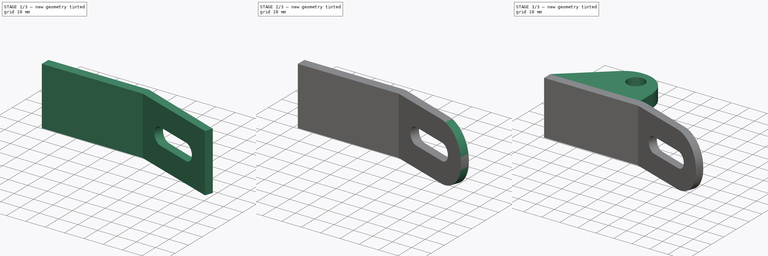
[diagram: build sequence overview — one tinted view per stage of 3, left to right]
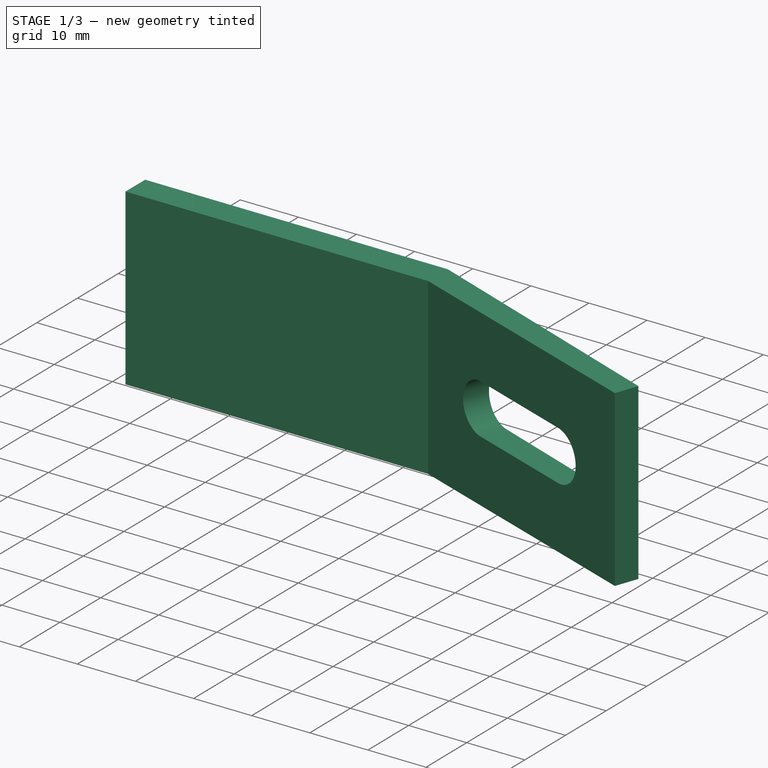
[diagram: stage 1 of 3 — iso view after this stage's code; geometry added in this stage tinted green]
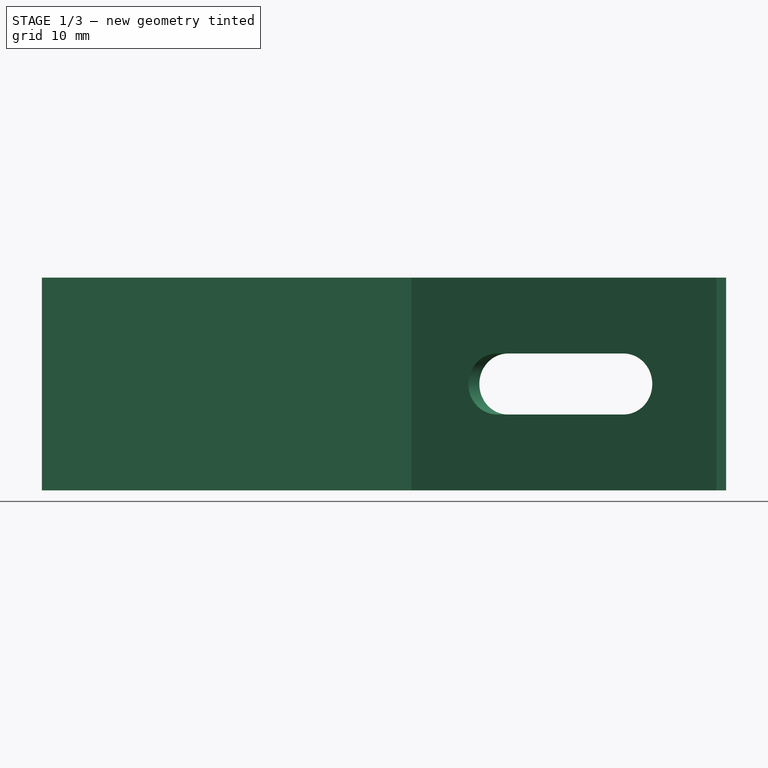
[diagram: stage 1 of 3 — front view after this stage's code; geometry added in this stage tinted green]
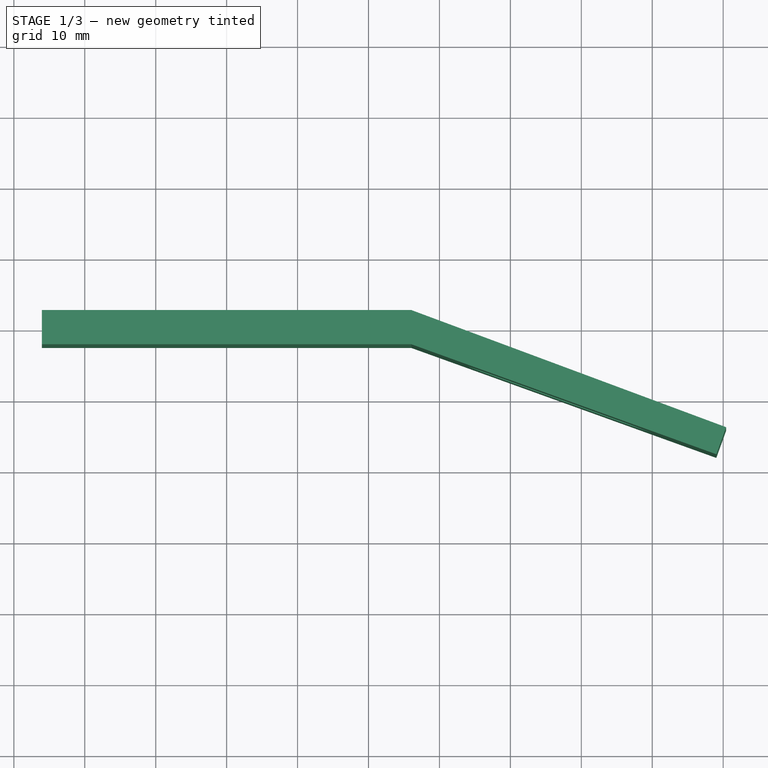
[diagram: stage 1 of 3 — top view after this stage's code; geometry added in this stage tinted green]
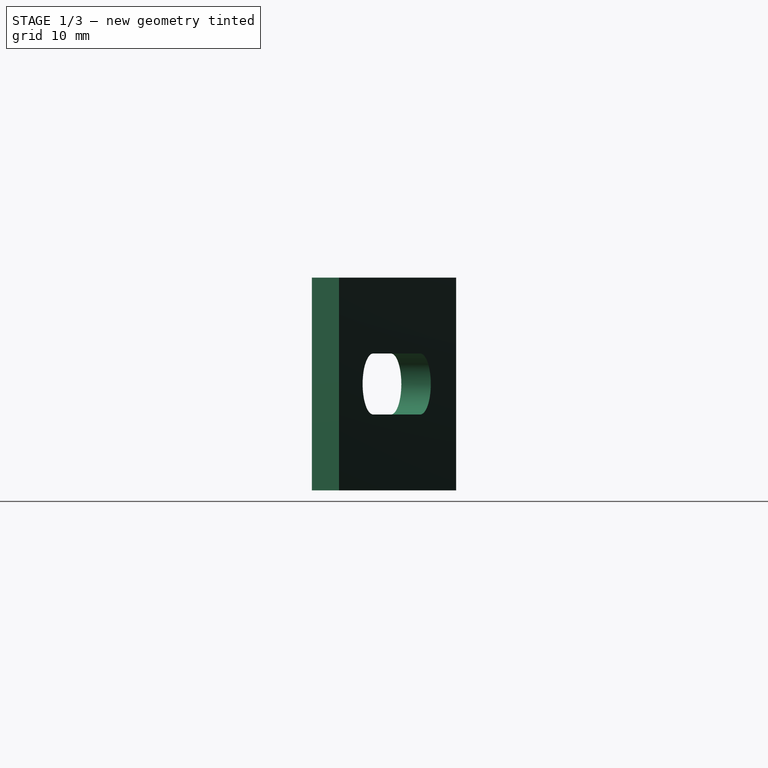
[diagram: stage 1 of 3 — right view after this stage's code; geometry added in this stage tinted green]
FCSTD DOCUMENT  (FreeCAD 0.21R33771 (Git))
Label: ex57
License: All rights reserved
LicenseURL: http://en.wikipedia.org/wiki/All_rights_reserved
objects: Sketcher::SketchObject×4, PartDesign::Fillet×3, PartDesign::Pad×2, PartDesign::Pocket×2, PartDesign::Body×1
note: 19 computed .brp shape members not serialized (recipe doc carries the construction recipe); baked Part::Feature solids carry a one-line shape summary decoded from their .brp

FEATURE [Sketcher::SketchObject] Sketch
  FullyConstrained = false
  MapMode = 5
  Support = -> [XY_Plane]
  sketch-geometry (7):
    g0: LineSegment StartX=-26.0424 StartY=-2.41265 StartZ=0 EndX=-26.0424 EndY=2.41265 EndZ=0
    g1: LineSegment StartX=-26.0424 StartY=2.41265 StartZ=0 EndX=26.0424 EndY=2.41265 EndZ=0
    g2: LineSegment StartX=26.0424 StartY=-2.41265 StartZ=0 EndX=-26.0424 EndY=-2.41265 EndZ=0
    g3: GeomPoint X=0 Y=0 Z=0
    g4: LineSegment StartX=26.0424 StartY=2.41265 StartZ=0 EndX=70.4084 EndY=-14.1011 EndZ=0
    g5: LineSegment StartX=26.0424 StartY=-2.41265 StartZ=0 EndX=69.0323 EndY=-17.9166 EndZ=0
    g6: LineSegment StartX=70.4084 StartY=-14.1011 StartZ=0 EndX=69.0323 EndY=-17.9166 EndZ=0
  constraints (11):
    c: Coincident(g0,g1)
    c: Coincident(g2,g0)
    c: Horizontal(g1)
    c: Horizontal(g2)
    c: Vertical(g0)
    c: Symmetric(g1,g0,g3)
    c: Coincident(g3,g-1)
    c: Coincident(g4,g1)
    c: Coincident(g6,g5)
    c: Coincident(g6,g4)
    c: Perpendicular(g5,g6)
FEATURE [PartDesign::Pad] Pad
  Direction = (0,0,1)
  Length = 30
  Length2 = 10
  Profile = -> Sketch
  ReferenceAxis = -> Sketch [N_Axis]
  Refine = true
  Type = 0
FEATURE [Sketcher::SketchObject] Sketch001
  FullyConstrained = false
  MapMode = 5
  Placement = pos=(3.95774,10.6329,0) rot=(0.126311,0.701443,0.701443;2.8903rad)
  Support = -> [Pad]
  sketch-geometry (4):
    g0: ArcOfCircle CenterX=-57.0511 CenterY=15 CenterZ=0 NormalX=0 NormalY=0 NormalZ=1 AngleXU=0 Radius=4.29729 StartAngle=1.5708 EndAngle=4.71239
    g1: ArcOfCircle CenterX=-38.0869 CenterY=15 CenterZ=0 NormalX=0 NormalY=0 NormalZ=1 AngleXU=0 Radius=4.29729 StartAngle=4.71239 EndAngle=7.85398
    g2: LineSegment StartX=-57.0511 StartY=10.7027 StartZ=0 EndX=-38.0869 EndY=10.7027 EndZ=0
    g3: LineSegment StartX=-38.0869 StartY=19.2973 StartZ=0 EndX=-57.0511 EndY=19.2973 EndZ=0
  constraints (7):
    c: Tangent(g0,g2) = -1.5708
    c: Tangent(g2,g1) = -1.5708
    c: Tangent(g1,g3) = -1.5708
    c: Tangent(g3,g0) = -1.5708
    c: Equal(g0,g1)
    c: Horizontal(g2)
    c: DistanceY(g-1,g0) = 15
FEATURE [PartDesign::Pocket] Pocket
  BaseFeature = -> Pad
  Direction = (-0.348835,-0.937184,2e-16)
  Length = 5
  Length2 = 5
  Profile = -> Sketch001
  ReferenceAxis = -> Sketch001 [N_Axis]
  Refine = true
  Type = 0
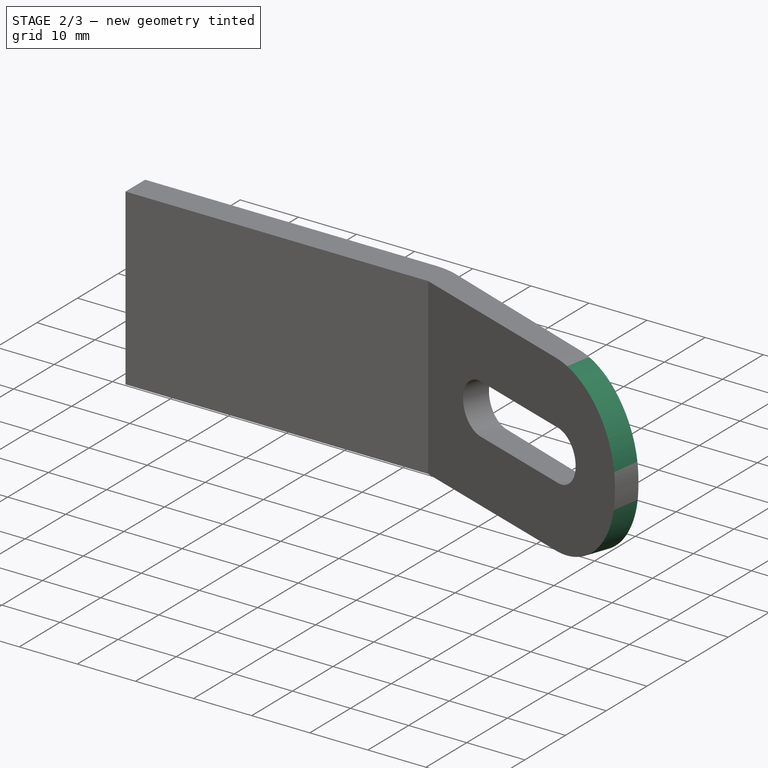
[diagram: stage 2 of 3 — iso view after this stage's code; geometry added in this stage tinted green]
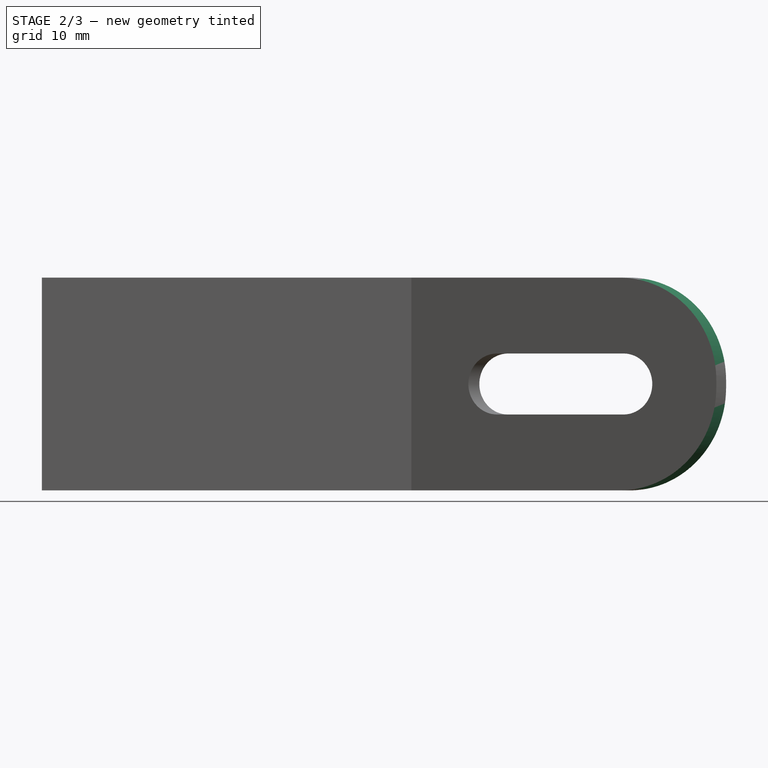
[diagram: stage 2 of 3 — front view after this stage's code; geometry added in this stage tinted green]
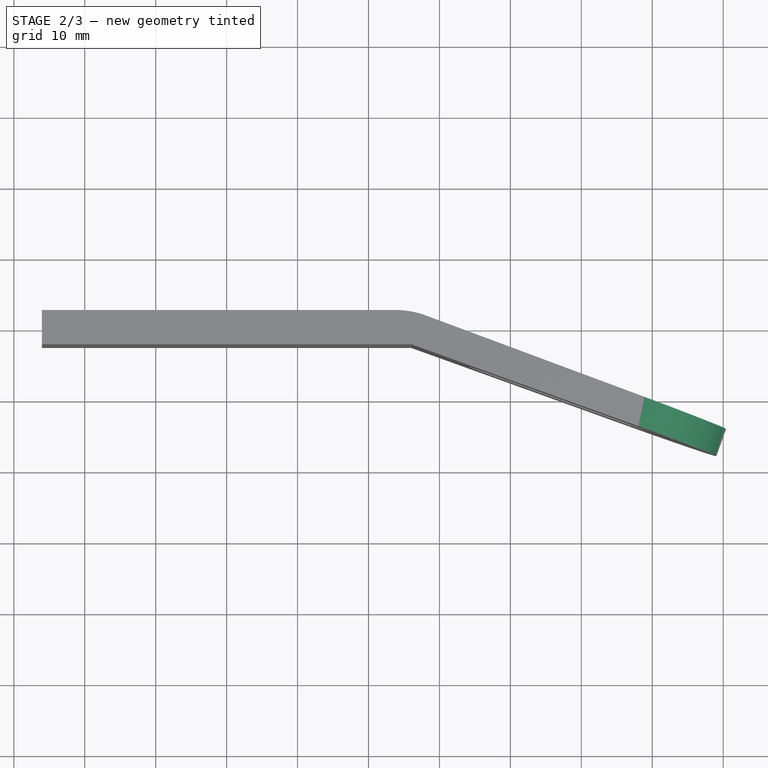
[diagram: stage 2 of 3 — top view after this stage's code; geometry added in this stage tinted green]
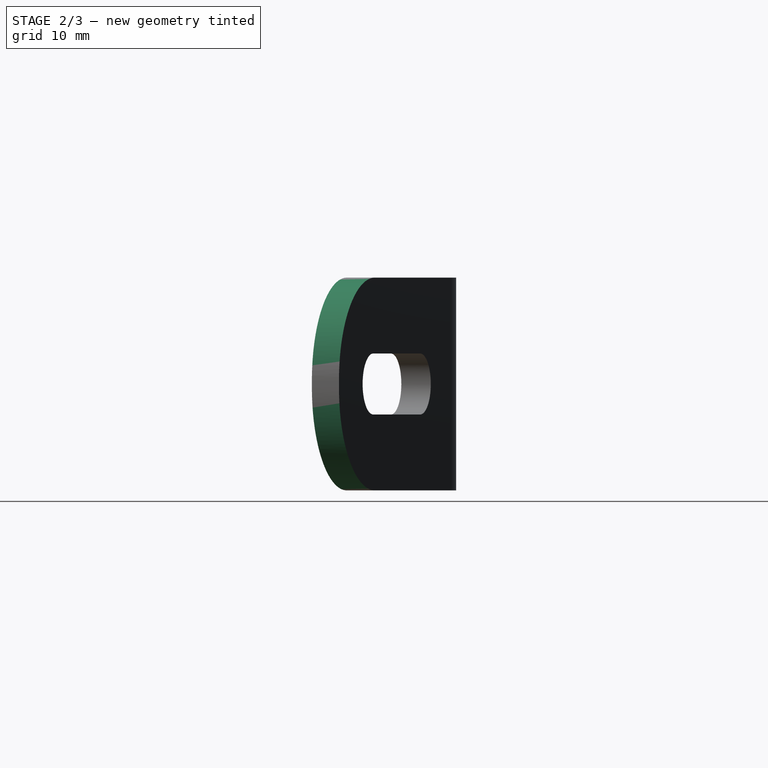
[diagram: stage 2 of 3 — right view after this stage's code; geometry added in this stage tinted green]
FEATURE [PartDesign::Fillet] Fillet
  Base = -> Pocket [Edge15]
  BaseFeature = -> Pocket
  Radius = 14.5
  Refine = true
  SupportTransform = false
  UseAllEdges = false
FEATURE [PartDesign::Fillet] Fillet001
  Base = -> Fillet [Edge29]
  BaseFeature = -> Fillet
  Radius = 14.5
  Refine = true
  SupportTransform = false
  UseAllEdges = false
FEATURE [PartDesign::Fillet] Fillet002
  Base = -> Fillet001 [Edge6]
  BaseFeature = -> Fillet001
  Radius = 12
  Refine = true
  SupportTransform = false
  UseAllEdges = false
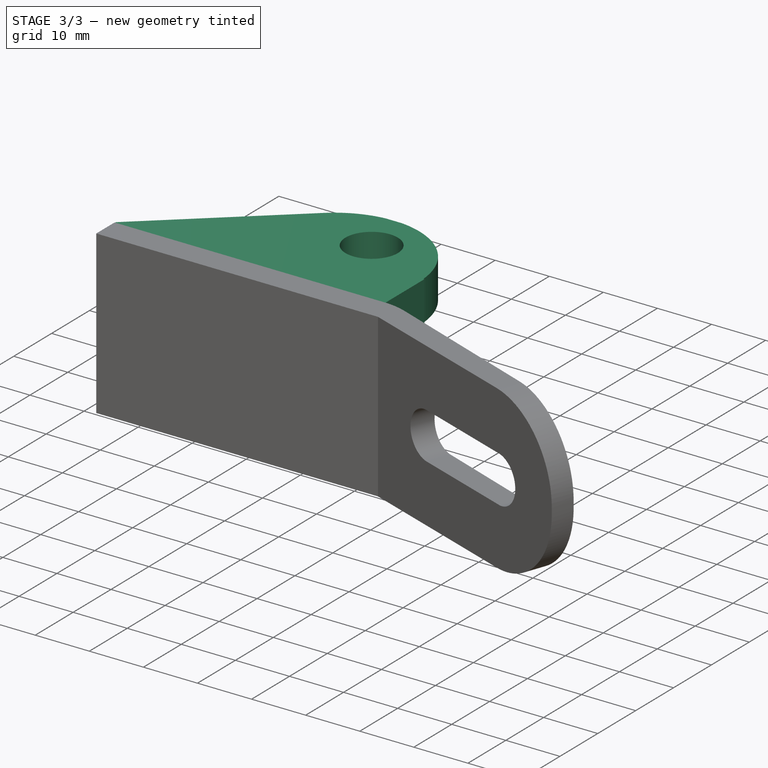
[diagram: stage 3 of 3 — iso view after this stage's code; geometry added in this stage tinted green]
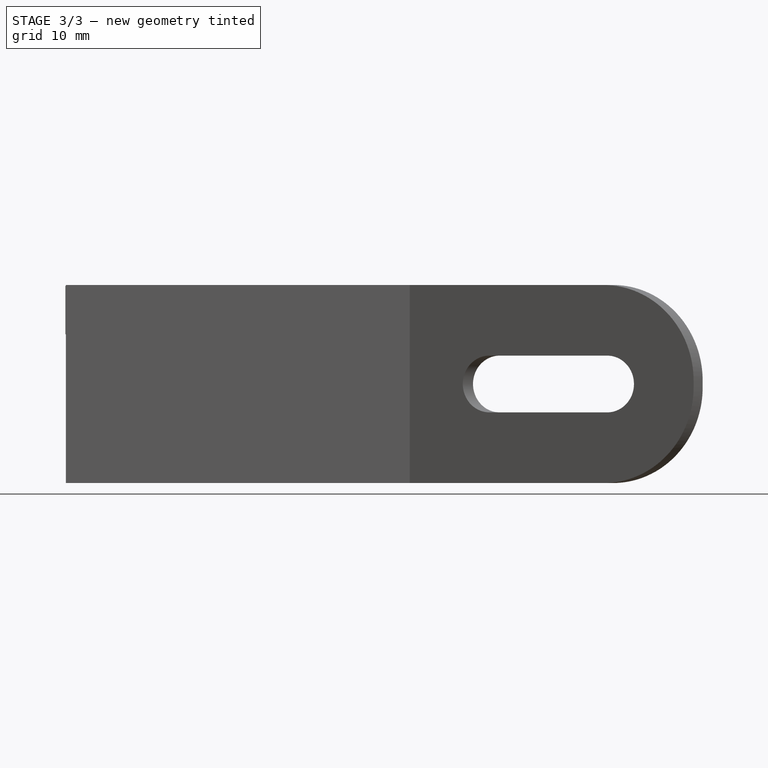
[diagram: stage 3 of 3 — front view after this stage's code; geometry added in this stage tinted green]
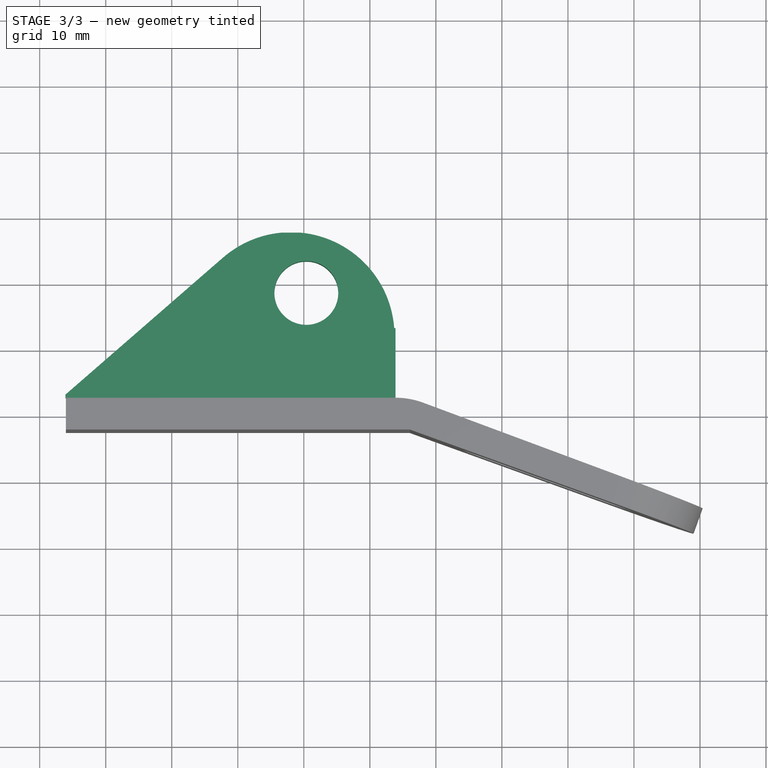
[diagram: stage 3 of 3 — top view after this stage's code; geometry added in this stage tinted green]
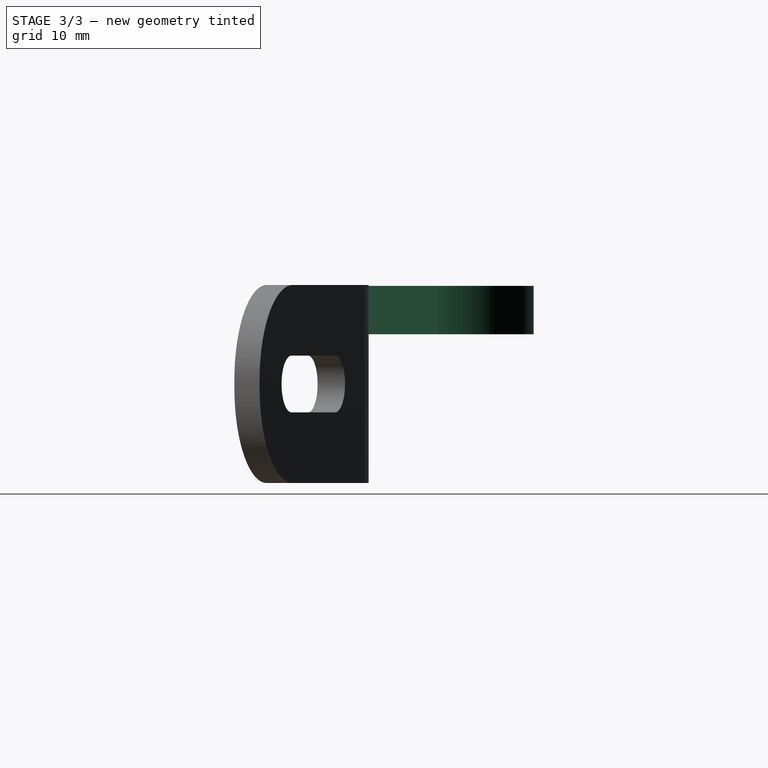
[diagram: stage 3 of 3 — right view after this stage's code; geometry added in this stage tinted green]
FEATURE [Sketcher::SketchObject] Sketch002
  FullyConstrained = false
  MapMode = 5
  Placement = pos=(0,2.41265,0) rot=(0,0.707107,0.707107;3.14159rad)
  Support = -> [Fillet002]
  sketch-geometry (5):
    g0: LineSegment StartX=-23.8834 StartY=22.5338 StartZ=0 EndX=-23.8834 EndY=29.8549 EndZ=0
    g1: LineSegment StartX=-23.8834 StartY=29.8549 StartZ=0 EndX=26.1189 EndY=29.8549 EndZ=0
    g2: LineSegment StartX=26.1189 StartY=29.8549 StartZ=0 EndX=26.1189 EndY=22.5338 EndZ=0
    g3: LineSegment StartX=26.1189 StartY=22.5338 StartZ=0 EndX=-23.8834 EndY=22.5338 EndZ=0
    g4: GeomPoint X=1.11775 Y=26.1943 Z=0
  constraints (9):
    c: Coincident(g0,g1)
    c: Coincident(g1,g2)
    c: Coincident(g2,g3)
    c: Coincident(g3,g0)
    c: Horizontal(g1)
    c: Horizontal(g3)
    c: Vertical(g0)
    c: Vertical(g2)
    c: Symmetric(g1,g0,g4)
FEATURE [PartDesign::Pad] Pad001
  BaseFeature = -> Fillet002
  Direction = (0,1,-2e-16)
  Length = 25
  Length2 = 10
  Profile = -> Sketch002
  ReferenceAxis = -> Sketch002 [N_Axis]
  Refine = true
  Type = 0
FEATURE [Sketcher::SketchObject] Sketch003
  FullyConstrained = false
  MapMode = 5
  Placement = pos=(0,6.6e-15,29.8549) rot=(0,0,1;0rad)
  Support = -> [Pad001]
  sketch-geometry (7):
    g0: LineSegment StartX=-30.0109 StartY=-0.513768 StartZ=0 EndX=-30.0109 EndY=32.2657 EndZ=0
    g1: ArcOfCircle CenterX=8.04998 CenterY=11.7998 CenterZ=0 NormalX=0 NormalY=0 NormalZ=1 AngleXU=0 Radius=15.6839 StartAngle=0.0743307 EndAngle=2.28657
    g2: LineSegment StartX=-2.2418 StartY=23.6347 StartZ=0 EndX=-30.0109 EndY=-0.513768 EndZ=0
    g3: LineSegment StartX=23.6906 StartY=12.9646 StartZ=0 EndX=32.1764 EndY=11.9662 EndZ=0
    g4: LineSegment StartX=32.1764 StartY=11.9662 StartZ=0 EndX=31.0117 EndY=32.2657 EndZ=0
    g5: LineSegment StartX=31.0117 StartY=32.2657 StartZ=0 EndX=-30.0109 EndY=32.2657 EndZ=0
    g6: Circle CenterX=10.3794 CenterY=18.289 CenterZ=0 NormalX=0 NormalY=0 NormalZ=1 AngleXU=0 Radius=4.83675
  constraints (6):
    c: Vertical(g0)
    c: Coincident(g2,g0)
    c: Coincident(g5,g0)
    c: Horizontal(g5)
    c: Tangent(g1,g2) = -1.5708
    c: Coincident(g1,g3)
FEATURE [PartDesign::Pocket] Pocket001
  BaseFeature = -> Pad001
  Direction = (0,-2e-16,-1)
  Length = 10
  Length2 = 5
  Profile = -> Sketch003
  ReferenceAxis = -> Sketch003 [N_Axis]
  Refine = true
  Type = 0
FEATURE [PartDesign::Body] Body
  Group = -> [Sketch,Pad,Sketch001,Pocket,Fillet,Fillet001,Fillet002,Sketch002,Pad001,Sketch003,Pocket001]
  Origin = -> Origin
  Tip = -> Pocket001
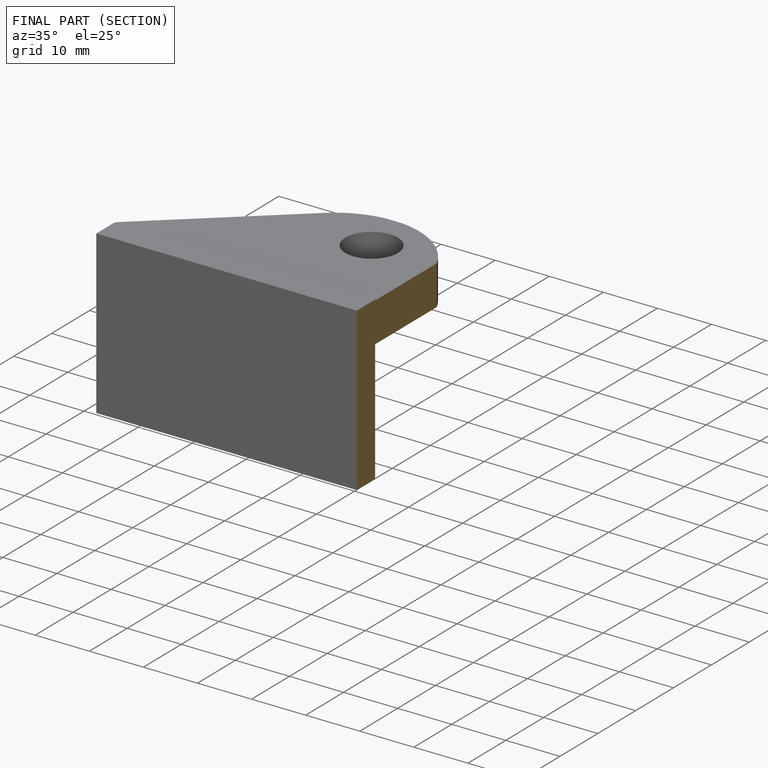
[diagram: finished part — half-section view (interior)]
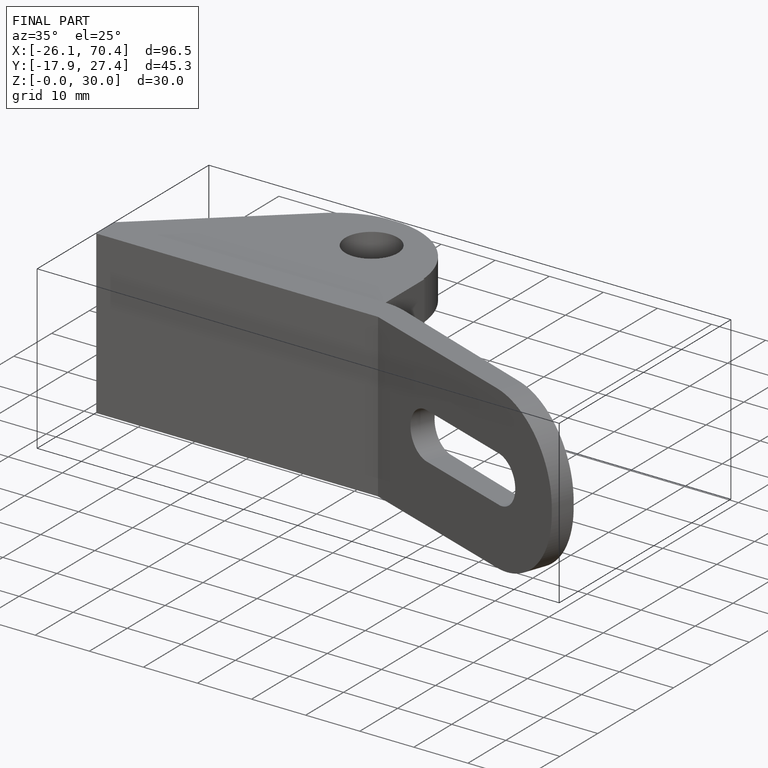
[diagram: finished part — iso view with bounding-box wireframe]
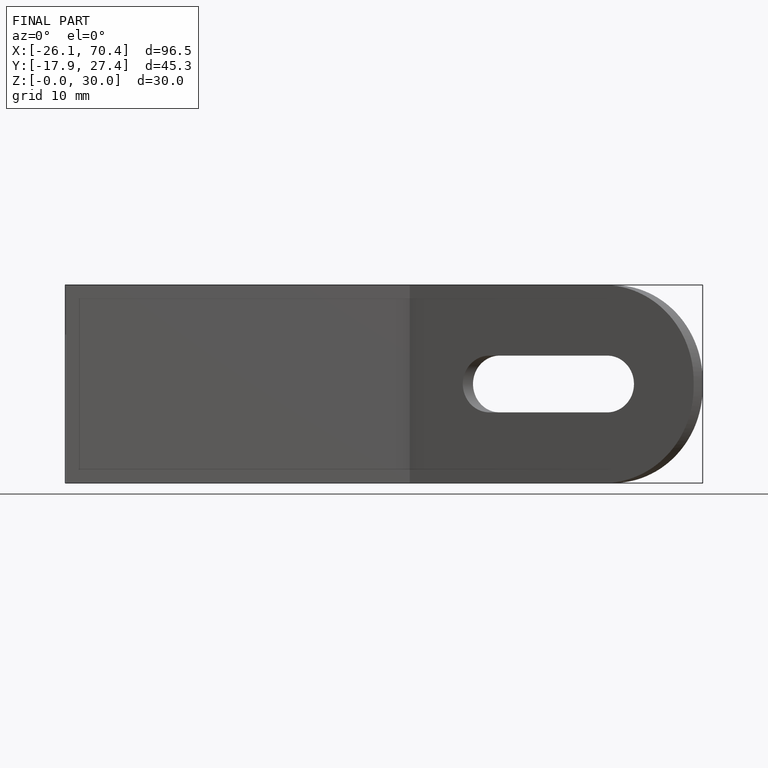
[diagram: finished part — front view with bounding-box wireframe]
